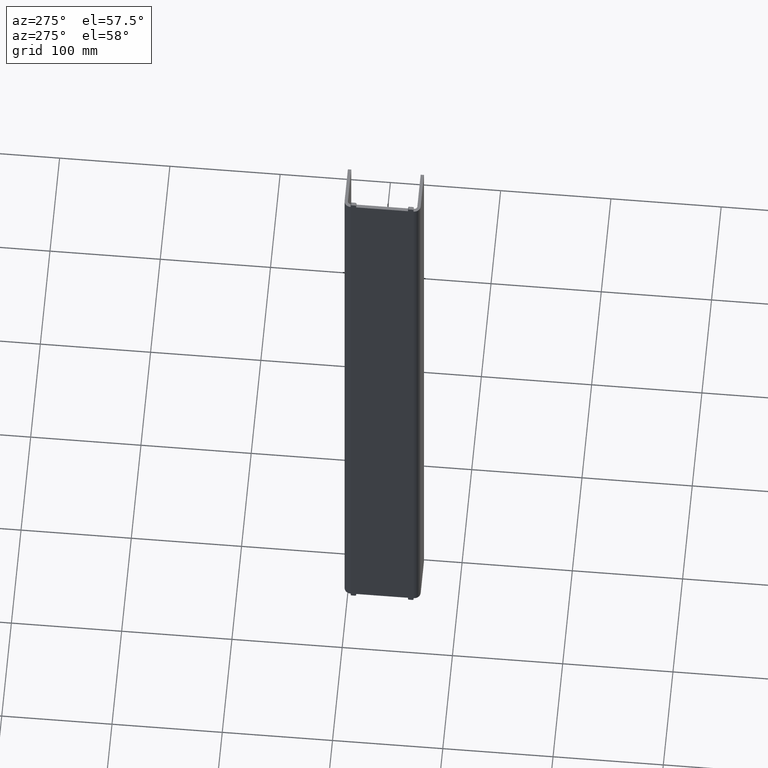
[diagram: clean part render]
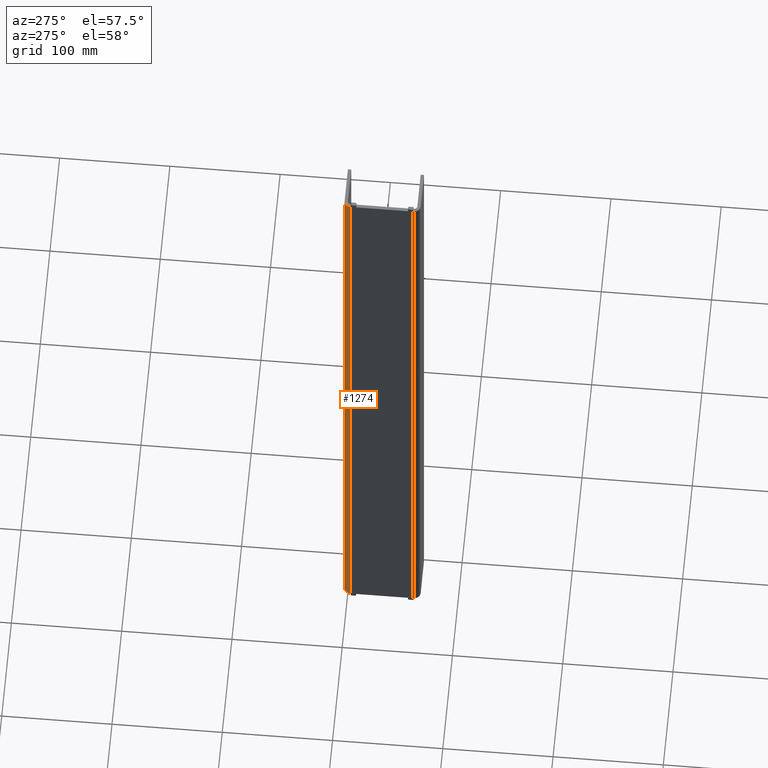
[diagram: same view with one face highlighted and labeled with its STEP entity id]
A machine part, auxiliary view. The second image highlights one B-rep face of the part: STEP entity #1274.
In plain terms, the highlighted cylindrical surface (edge-blend (fillet) strip) has radius 6 mm, axis along (0, 0, 1).
Its self-contained STEP definition (entity closure, byte-faithful):
#97 = CARTESIAN_POINT ( 'NONE',  ( -349.9999999999996589, -1103.305262667903889, -624.9999999999997726 ) ) ;
#116 = LINE ( 'NONE', #529, #861 ) ;
#199 = CARTESIAN_POINT ( 'NONE',  ( -343.9999999999996589, -1103.305262667903889, 104.7558775263622834 ) ) ;
#227 = ORIENTED_EDGE ( 'NONE', *, *, #658, .T. ) ;
#238 = CIRCLE ( 'NONE', #580, 6.000000000000005329 ) ;
#309 = DIRECTION ( 'NONE',  ( 0.000000000000000000, 0.000000000000000000, 1.000000000000000000 ) ) ;
#344 = DIRECTION ( 'NONE',  ( -0.000000000000000000, -0.000000000000000000, -1.000000000000000000 ) ) ;
#381 = CARTESIAN_POINT ( 'NONE',  ( -343.9999999999996589, -1103.305262667903889, 25.00000000000045119 ) ) ;
#436 = DIRECTION ( 'NONE',  ( 0.000000000000000000, 0.000000000000000000, 1.000000000000000000 ) ) ;
#447 = AXIS2_PLACEMENT_3D ( 'NONE', #199, #309, #989 ) ;
#507 = EDGE_CURVE ( 'NONE', #805, #707, #749, .T. ) ;
#529 = CARTESIAN_POINT ( 'NONE',  ( -343.9999999999996589, -1097.305262667903889, 104.7558775263622834 ) ) ;
#542 = CARTESIAN_POINT ( 'NONE',  ( -343.9999999999996589, -1103.305262667903889, -624.9999999999997726 ) ) ;
#580 = AXIS2_PLACEMENT_3D ( 'NONE', #381, #688, #1084 ) ;
#587 = CYLINDRICAL_SURFACE ( 'NONE', #447, 6.000000000000005329 ) ;
#592 = CARTESIAN_POINT ( 'NONE',  ( -343.9999999999996589, -1097.305262667903889, -624.9999999999997726 ) ) ;
#637 = ORIENTED_EDGE ( 'NONE', *, *, #886, .F. ) ;
#651 = DIRECTION ( 'NONE',  ( 1.000000000000000000, 0.000000000000000000, 0.000000000000000000 ) ) ;
#658 = EDGE_CURVE ( 'NONE', #805, #1205, #238, .T. ) ;
#688 = DIRECTION ( 'NONE',  ( -0.000000000000000000, -0.000000000000000000, -1.000000000000000000 ) ) ;
#698 = AXIS2_PLACEMENT_3D ( 'NONE', #542, #847, #651 ) ;
#707 = VERTEX_POINT ( 'NONE', #97 ) ;
#749 = LINE ( 'NONE', #1268, #944 ) ;
#805 = VERTEX_POINT ( 'NONE', #916 ) ;
#847 = DIRECTION ( 'NONE',  ( 0.000000000000000000, 0.000000000000000000, 1.000000000000000000 ) ) ;
#850 = EDGE_LOOP ( 'NONE', ( #227, #637, #1044, #1230 ) ) ;
#861 = VECTOR ( 'NONE', #436, 1000.000000000000000 ) ;
#886 = EDGE_CURVE ( 'NONE', #1302, #1205, #116, .T. ) ;
#909 = EDGE_CURVE ( 'NONE', #1302, #707, #1259, .T. ) ;
#916 = CARTESIAN_POINT ( 'NONE',  ( -349.9999999999996589, -1103.305262667904117, 25.00000000000045119 ) ) ;
#944 = VECTOR ( 'NONE', #344, 1000.000000000000000 ) ;
#989 = DIRECTION ( 'NONE',  ( 1.000000000000000000, 0.000000000000000000, 0.000000000000000000 ) ) ;
#1044 = ORIENTED_EDGE ( 'NONE', *, *, #909, .T. ) ;
#1084 = DIRECTION ( 'NONE',  ( 1.000000000000000000, 0.000000000000000000, 0.000000000000000000 ) ) ;
#1159 = CARTESIAN_POINT ( 'NONE',  ( -343.9999999999996589, -1097.305262667903889, 25.00000000000046541 ) ) ;
#1205 = VERTEX_POINT ( 'NONE', #1159 ) ;
#1230 = ORIENTED_EDGE ( 'NONE', *, *, #507, .F. ) ;
#1259 = CIRCLE ( 'NONE', #698, 6.000000000000005329 ) ;
#1268 = CARTESIAN_POINT ( 'NONE',  ( -349.9999999999996589, -1103.305262667903889, 104.7558775263622834 ) ) ;
#1274 = ADVANCED_FACE ( 'NONE', ( #1286 ), #587, .T. ) ;
#1286 = FACE_OUTER_BOUND ( 'NONE', #850, .T. ) ;
#1302 = VERTEX_POINT ( 'NONE', #592 ) ;